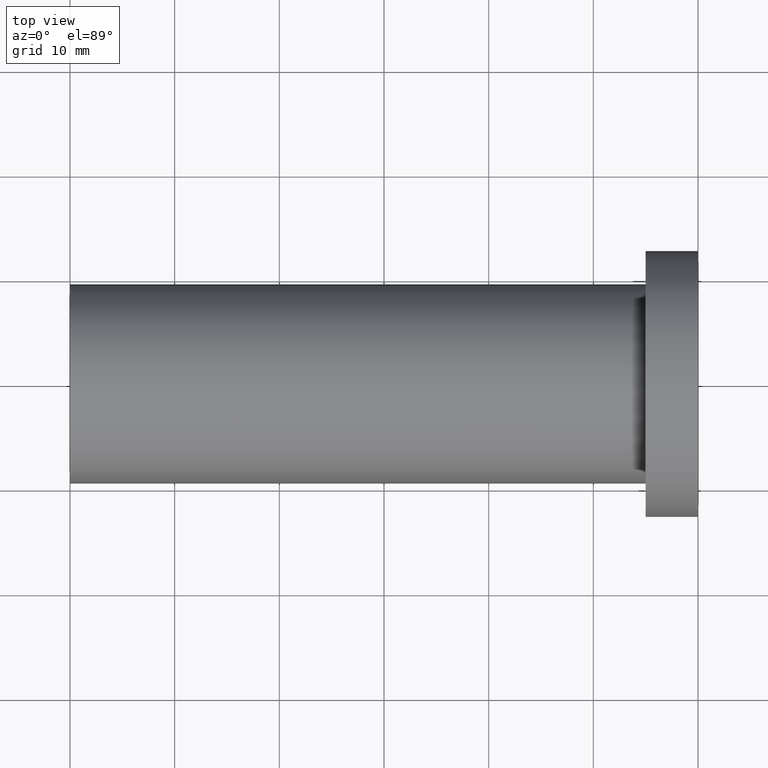
[diagram: clean part render]
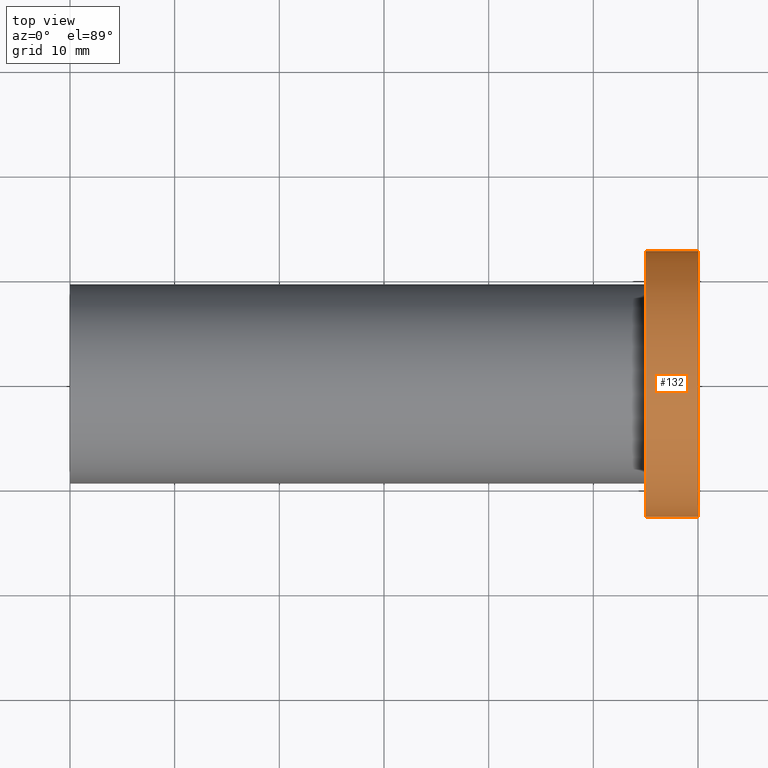
[diagram: same view with one face highlighted and labeled with its STEP entity id]
A machine part, top view. The second image highlights one B-rep face of the part: STEP entity #132.
In plain terms, the highlighted cylindrical surface (bore or boss wall) has radius 12.7 mm, axis along (1, 0, 0).
Its self-contained STEP definition (entity closure, byte-faithful):
#27=FACE_OUTER_BOUND('',#38,.T.);
#38=EDGE_LOOP('',(#101,#102,#103,#104));
#51=LINE('',#245,#56);
#56=VECTOR('',#202,12.7);
#62=CIRCLE('',#167,12.7);
#64=CIRCLE('',#170,12.7);
#72=VERTEX_POINT('',#238);
#74=VERTEX_POINT('',#243);
#83=EDGE_CURVE('',#72,#72,#62,.T.);
#85=EDGE_CURVE('',#74,#74,#64,.T.);
#86=EDGE_CURVE('',#74,#72,#51,.T.);
#101=ORIENTED_EDGE('',*,*,#85,.F.);
#102=ORIENTED_EDGE('',*,*,#86,.T.);
#103=ORIENTED_EDGE('',*,*,#83,.T.);
#104=ORIENTED_EDGE('',*,*,#86,.F.);
#126=CYLINDRICAL_SURFACE('',#169,12.7);
#132=ADVANCED_FACE('',(#27),#126,.T.);
#167=AXIS2_PLACEMENT_3D('',#239,#194,#195);
#169=AXIS2_PLACEMENT_3D('',#242,#198,#199);
#170=AXIS2_PLACEMENT_3D('',#244,#200,#201);
#194=DIRECTION('center_axis',(1.,0.,0.));
#195=DIRECTION('ref_axis',(0.,0.,-1.));
#198=DIRECTION('center_axis',(1.,0.,0.));
#199=DIRECTION('ref_axis',(0.,1.,0.));
#200=DIRECTION('center_axis',(1.,0.,0.));
#201=DIRECTION('ref_axis',(0.,0.,-1.));
#202=DIRECTION('',(-1.,0.,0.));
#238=CARTESIAN_POINT('',(-5.,-12.7,-1.55530143491714E-15));
#239=CARTESIAN_POINT('Origin',(-5.,0.,0.));
#242=CARTESIAN_POINT('Origin',(-2.5,0.,0.));
#243=CARTESIAN_POINT('',(8.88178419700125E-15,-12.7,-1.55530143491714E-15));
#244=CARTESIAN_POINT('Origin',(8.88178419700125E-15,0.,0.));
#245=CARTESIAN_POINT('',(-2.5,-12.7,-1.55530143491714E-15));